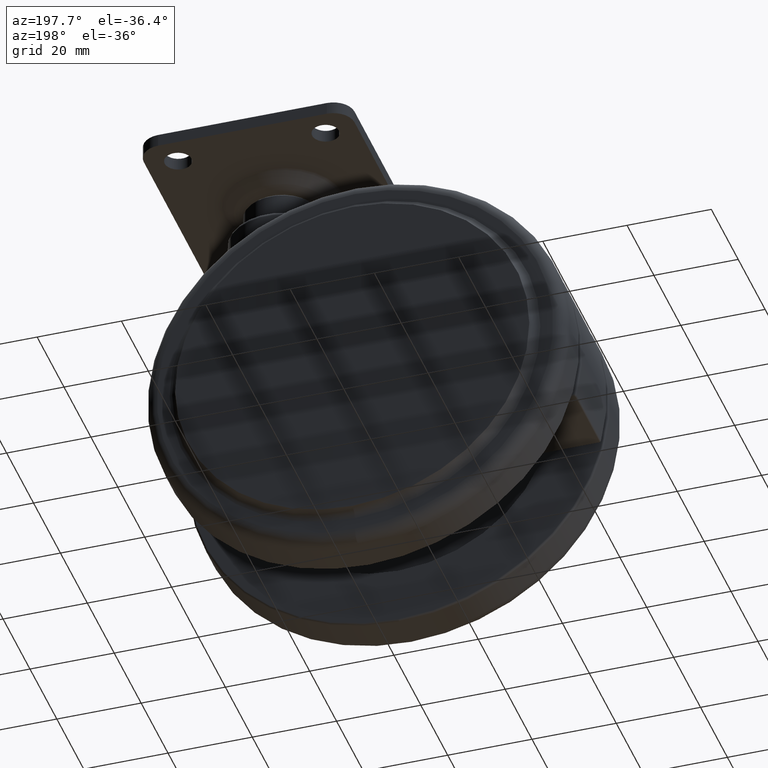
[diagram: clean part render]
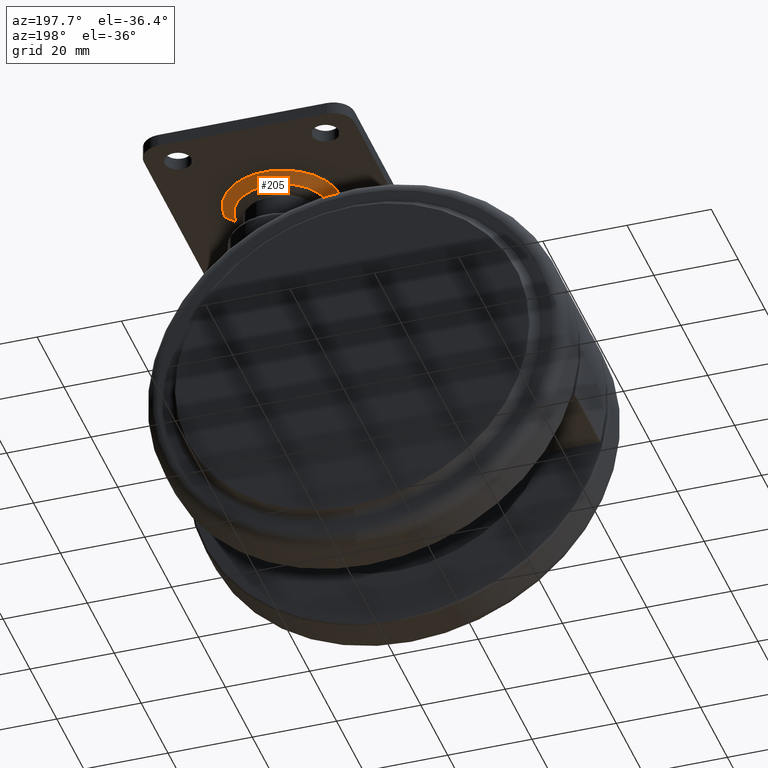
[diagram: same view with one face highlighted and labeled with its STEP entity id]
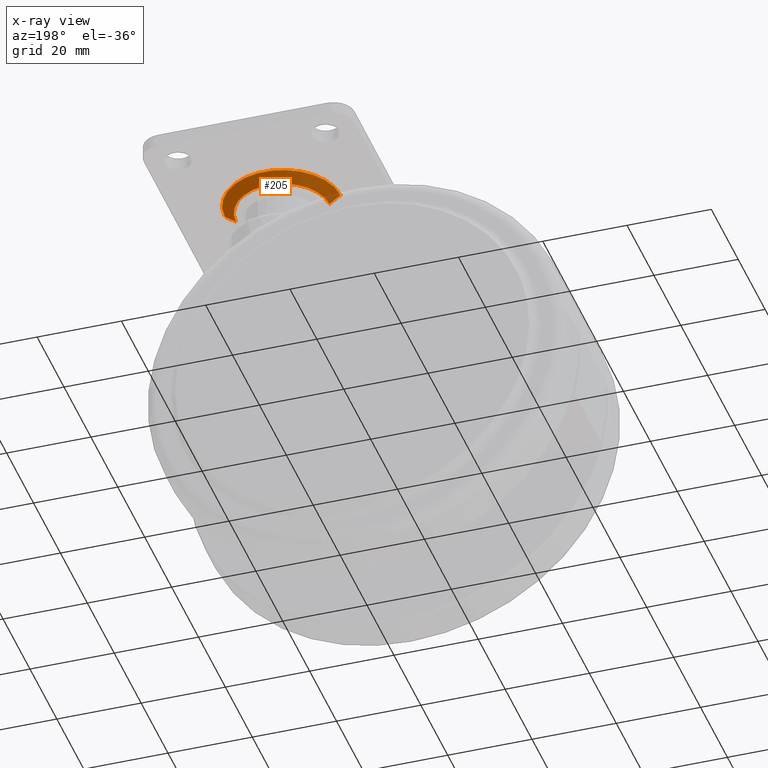
[diagram: x-ray of the same camera — body ghosted, the highlighted face saturated]
A machine part, auxiliary view. The second image highlights one B-rep face of the part: STEP entity #205.
The next image is the same camera in x-ray: the body ghosted, the highlighted face saturated — about 4% of this face is hidden behind the body in this view.
In plain terms, the highlighted conical surface has half-angle 53.616 deg.
Its self-contained STEP definition (entity closure, byte-faithful):
#70 = DIRECTION ( 'NONE',  ( 0.0000000000000000000, 0.0000000000000000000, -1.000000000000000000 ) ) ;
#81 = CARTESIAN_POINT ( 'NONE',  ( 11.08740246726536300, 1.357815194239499600E-015, 8.669664975879760100 ) ) ;
#205 = ADVANCED_FACE ( 'NONE', ( #3542 ), #1202, .T. ) ;
#411 = DIRECTION ( 'NONE',  ( -0.8050558373533637200, 9.859090543496891800E-017, 0.5931990380498557400 ) ) ;
#573 = EDGE_CURVE ( 'NONE', #2109, #1417, #3355, .T. ) ;
#609 = DIRECTION ( 'NONE',  ( 0.0000000000000000000, 0.0000000000000000000, 1.000000000000000000 ) ) ;
#622 = LINE ( 'NONE', #2042, #1581 ) ;
#1038 = DIRECTION ( 'NONE',  ( 1.000000000000000000, 0.0000000000000000000, 0.0000000000000000000 ) ) ;
#1202 = CONICAL_SURFACE ( 'NONE', #3730, 11.08740246726539900, 0.9357695914045758300 ) ;
#1210 = DIRECTION ( 'NONE',  ( 0.0000000000000000000, 0.0000000000000000000, -1.000000000000000000 ) ) ;
#1296 = AXIS2_PLACEMENT_3D ( 'NONE', #3697, #1210, #4106 ) ;
#1417 = VERTEX_POINT ( 'NONE', #81 ) ;
#1581 = VECTOR ( 'NONE', #411, 1000.000000000000100 ) ;
#1742 = ORIENTED_EDGE ( 'NONE', *, *, #4557, .T. ) ;
#1847 = VECTOR ( 'NONE', #4224, 1000.000000000000100 ) ;
#2042 = CARTESIAN_POINT ( 'NONE',  ( -11.08740246726539900, 1.357815194239503900E-015, 8.669664975879760100 ) ) ;
#2109 = VERTEX_POINT ( 'NONE', #3551 ) ;
#2559 = CARTESIAN_POINT ( 'NONE',  ( 0.0000000000000000000, 0.0000000000000000000, 10.61011167470678100 ) ) ;
#2860 = VERTEX_POINT ( 'NONE', #4279 ) ;
#2983 = DIRECTION ( 'NONE',  ( -1.000000000000000000, 0.0000000000000000000, 0.0000000000000000000 ) ) ;
#3162 = VERTEX_POINT ( 'NONE', #3630 ) ;
#3355 = CIRCLE ( 'NONE', #1296, 11.08740246726539900 ) ;
#3456 = CIRCLE ( 'NONE', #4203, 13.72086584424490000 ) ;
#3458 = EDGE_CURVE ( 'NONE', #1417, #2860, #4049, .T. ) ;
#3542 = FACE_OUTER_BOUND ( 'NONE', #3797, .T. ) ;
#3551 = CARTESIAN_POINT ( 'NONE',  ( -11.08740246726536300, 0.0000000000000000000, 8.669664975879760100 ) ) ;
#3569 = ORIENTED_EDGE ( 'NONE', *, *, #3458, .F. ) ;
#3587 = ORIENTED_EDGE ( 'NONE', *, *, #4119, .T. ) ;
#3630 = CARTESIAN_POINT ( 'NONE',  ( -13.72086584424488700, 1.680321443768475100E-015, 10.61011167470678100 ) ) ;
#3697 = CARTESIAN_POINT ( 'NONE',  ( 0.0000000000000000000, 0.0000000000000000000, 8.669664975879760100 ) ) ;
#3730 = AXIS2_PLACEMENT_3D ( 'NONE', #3929, #609, #1038 ) ;
#3797 = EDGE_LOOP ( 'NONE', ( #4980, #3587, #1742, #3569 ) ) ;
#3929 = CARTESIAN_POINT ( 'NONE',  ( 0.0000000000000000000, 0.0000000000000000000, 8.669664975879760100 ) ) ;
#4049 = LINE ( 'NONE', #5082, #1847 ) ;
#4106 = DIRECTION ( 'NONE',  ( -1.000000000000000000, 0.0000000000000000000, 0.0000000000000000000 ) ) ;
#4119 = EDGE_CURVE ( 'NONE', #2109, #3162, #622, .T. ) ;
#4203 = AXIS2_PLACEMENT_3D ( 'NONE', #2559, #70, #2983 ) ;
#4224 = DIRECTION ( 'NONE',  ( 0.8050558373533637200, 0.0000000000000000000, 0.5931990380498557400 ) ) ;
#4279 = CARTESIAN_POINT ( 'NONE',  ( 13.72086584424488700, 0.0000000000000000000, 10.61011167470678100 ) ) ;
#4557 = EDGE_CURVE ( 'NONE', #3162, #2860, #3456, .T. ) ;
#4980 = ORIENTED_EDGE ( 'NONE', *, *, #573, .F. ) ;
#5082 = CARTESIAN_POINT ( 'NONE',  ( 11.08740246726539900, 0.0000000000000000000, 8.669664975879760100 ) ) ;